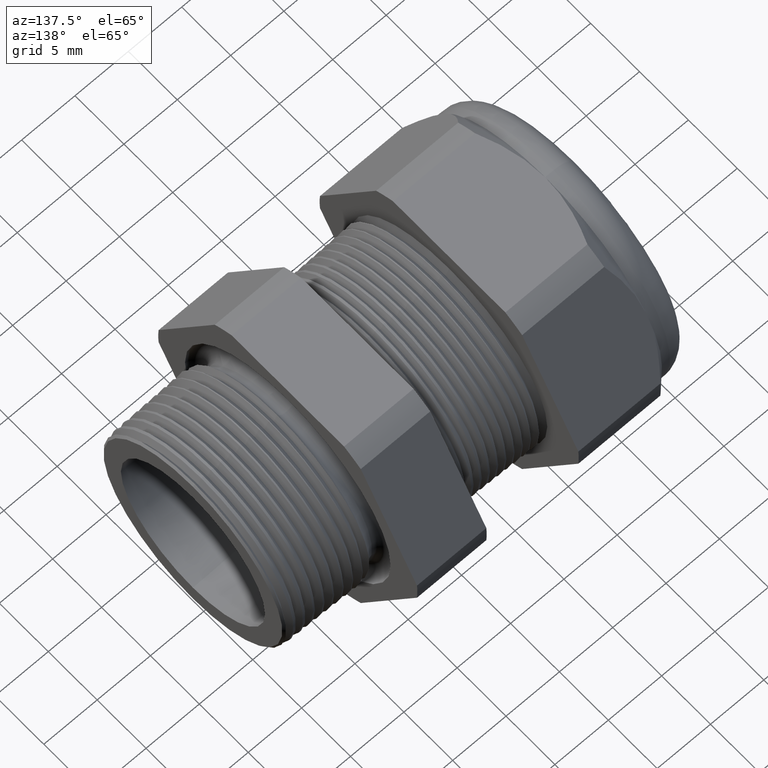
[diagram: clean part render]
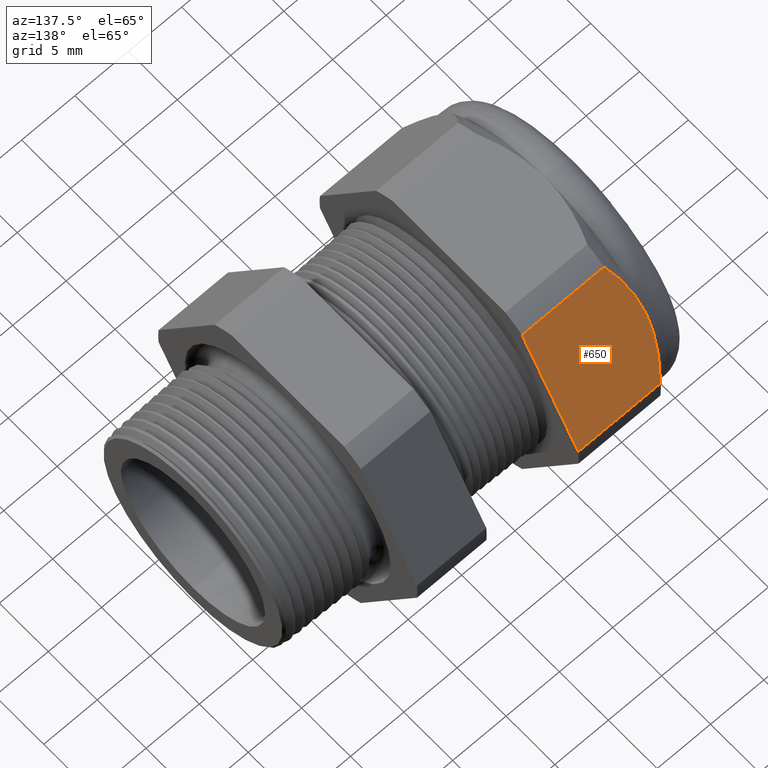
[diagram: same view with one face highlighted and labeled with its STEP entity id]
A machine part, auxiliary view. The second image highlights one B-rep face of the part: STEP entity #650.
In plain terms, the highlighted planar face has unit normal (0, 0.866, 0.5).
Its self-contained STEP definition (entity closure, byte-faithful):
#567 = VERTEX_POINT ( 'NONE', #2657 ) ;
#569 = ORIENTED_EDGE ( 'NONE', *, *, #570, .T. ) ;
#570 = EDGE_CURVE ( 'NONE', #567, #4827, #2654, .T. ) ;
#597 = EDGE_CURVE ( 'NONE', #599, #601, #2712, .T. ) ;
#599 = VERTEX_POINT ( 'NONE', #2707 ) ;
#601 = VERTEX_POINT ( 'NONE', #2705 ) ;
#620 = ORIENTED_EDGE ( 'NONE', *, *, #621, .T. ) ;
#621 = EDGE_CURVE ( 'NONE', #4827, #601, #2734, .T. ) ;
#622 = ORIENTED_EDGE ( 'NONE', *, *, #597, .F. ) ;
#623 = ORIENTED_EDGE ( 'NONE', *, *, #626, .F. ) ;
#626 = EDGE_CURVE ( 'NONE', #655, #599, #2785, .T. ) ;
#650 = ADVANCED_FACE ( 'NONE', ( #2798 ), #2855, .T. ) ;
#651 = EDGE_LOOP ( 'NONE', ( #652, #569, #620, #622, #623 ) ) ;
#652 = ORIENTED_EDGE ( 'NONE', *, *, #654, .T. ) ;
#654 = EDGE_CURVE ( 'NONE', #655, #567, #2849, .T. ) ;
#655 = VERTEX_POINT ( 'NONE', #2845 ) ;
#2641 = CARTESIAN_POINT ( 'NONE',  ( -1.259763779527559400, 0.4070319397786862900, 0.2350000000000001800 ) ) ;
#2642 = CARTESIAN_POINT ( 'NONE',  ( -1.259763779527559400, 0.4119326305003308000, 0.2265117546779305500 ) ) ;
#2643 = CARTESIAN_POINT ( 'NONE',  ( -1.259453644849874100, 0.4168781440523187700, 0.2179458739363668300 ) ) ;
#2644 = CARTESIAN_POINT ( 'NONE',  ( -1.258221849142434600, 0.4267040029977486900, 0.2009269870148766000 ) ) ;
#2645 = CARTESIAN_POINT ( 'NONE',  ( -1.257304216752656000, 0.4315793332085026700, 0.1924826673861759500 ) ) ;
#2646 = CARTESIAN_POINT ( 'NONE',  ( -1.253700751481475800, 0.4460993342073096800, 0.1673332879302912000 ) ) ;
#2647 = CARTESIAN_POINT ( 'NONE',  ( -1.250164085422761800, 0.4556379823307485400, 0.1508118647449734900 ) ) ;
#2648 = CARTESIAN_POINT ( 'NONE',  ( -1.236620445010038400, 0.4838883643614173000, 0.1018807677346242200 ) ) ;
#2649 = CARTESIAN_POINT ( 'NONE',  ( -1.223697825203295700, 0.5022367785154772100, 0.07010038218147690600 ) ) ;
#2650 = CARTESIAN_POINT ( 'NONE',  ( -1.208063779527559100, 0.5202473208008776600, 0.03890520787129531800 ) ) ;
#2654 = B_SPLINE_CURVE_WITH_KNOTS ( 'NONE', 3,
 ( #2650, #2649, #2648, #2647, #2646, #2645, #2644, #2643, #2642, #2641 ),
 .UNSPECIFIED., .F., .F.,
 ( 4, 2, 2, 2, 4 ),
 ( 2.483251536678829300E-007, 0.002951677829872989100, 0.004427392582232650600, 0.005165249958412478900, 0.005903107334592308200 ),
 .UNSPECIFIED. ) ;
#2657 = CARTESIAN_POINT ( 'NONE',  ( -1.208063779527559100, 0.5202473208008776600, 0.03890520787129531800 ) ) ;
#2705 = CARTESIAN_POINT ( 'NONE',  ( -1.208063779527559300, 0.2938165587564947600, 0.4310947921287048800 ) ) ;
#2707 = CARTESIAN_POINT ( 'NONE',  ( -0.9054330708661418900, 0.2938165587564947600, 0.4310947921287048800 ) ) ;
#2709 = DIRECTION ( 'NONE',  ( -1.000000000000000000, 0.0000000000000000000, 0.0000000000000000000 ) ) ;
#2710 = VECTOR ( 'NONE', #2709, 39.37007874015748100 ) ;
#2711 = CARTESIAN_POINT ( 'NONE',  ( 0.03999999999999984800, 0.2938165587564947600, 0.4310947921287048800 ) ) ;
#2712 = LINE ( 'NONE', #2711, #2710 ) ;
#2734 = B_SPLINE_CURVE_WITH_KNOTS ( 'NONE', 3,
 ( #2791, #2790, #2789, #2788, #2787, #2786 ),
 .UNSPECIFIED., .F., .F.,
 ( 4, 2, 4 ),
 ( 0.005903107334592308200, 0.008852512982428768400, 0.01180191863026522700 ),
 .UNSPECIFIED. ) ;
#2778 = DIRECTION ( 'NONE',  ( 0.0000000000000000000, -0.5000000000000001100, 0.8660254037844384900 ) ) ;
#2779 = VECTOR ( 'NONE', #2778, 39.37007874015748900 ) ;
#2780 = CARTESIAN_POINT ( 'NONE',  ( -0.9054330708661418900, 0.5057819397786863500, 0.06395998275257346000 ) ) ;
#2785 = LINE ( 'NONE', #2780, #2779 ) ;
#2786 = CARTESIAN_POINT ( 'NONE',  ( -1.208063779527559300, 0.2938165587564947600, 0.4310947921287048800 ) ) ;
#2787 = CARTESIAN_POINT ( 'NONE',  ( -1.223717189021966200, 0.3118494083116970000, 0.3998609804938483800 ) ) ;
#2788 = CARTESIAN_POINT ( 'NONE',  ( -1.236822062588143000, 0.3304876304616241600, 0.3675786327674193100 ) ) ;
#2789 = CARTESIAN_POINT ( 'NONE',  ( -1.254818111347314900, 0.3682441305491640500, 0.3021824562998214300 ) ) ;
#2790 = CARTESIAN_POINT ( 'NONE',  ( -1.259763779527559400, 0.3874426189162285500, 0.2689296990195458900 ) ) ;
#2791 = CARTESIAN_POINT ( 'NONE',  ( -1.259763779527559400, 0.4070319397786862900, 0.2350000000000001800 ) ) ;
#2798 = FACE_OUTER_BOUND ( 'NONE', #651, .T. ) ;
#2845 = CARTESIAN_POINT ( 'NONE',  ( -0.9054330708661418900, 0.5202473208008776600, 0.03890520787129531800 ) ) ;
#2846 = DIRECTION ( 'NONE',  ( -1.000000000000000000, 0.0000000000000000000, 0.0000000000000000000 ) ) ;
#2847 = VECTOR ( 'NONE', #2846, 39.37007874015748100 ) ;
#2848 = CARTESIAN_POINT ( 'NONE',  ( 0.03999999999999984800, 0.5202473208008776600, 0.03890520787129531800 ) ) ;
#2849 = LINE ( 'NONE', #2848, #2847 ) ;
#2851 = DIRECTION ( 'NONE',  ( 0.0000000000000000000, -0.5000000000000001100, 0.8660254037844384900 ) ) ;
#2852 = DIRECTION ( 'NONE',  ( 0.0000000000000000000, 0.8660254037844386000, 0.5000000000000002200 ) ) ;
#2853 = CARTESIAN_POINT ( 'NONE',  ( 0.03999999999999984800, 0.2938165587564947600, 0.4310947921287048800 ) ) ;
#2854 = AXIS2_PLACEMENT_3D ( 'NONE', #2853, #2852, #2851 ) ;
#2855 = PLANE ( 'NONE',  #2854 ) ;
#4018 = CARTESIAN_POINT ( 'NONE',  ( -1.259763779527559400, 0.4070319397786862900, 0.2350000000000001800 ) ) ;
#4827 = VERTEX_POINT ( 'NONE', #4018 ) ;